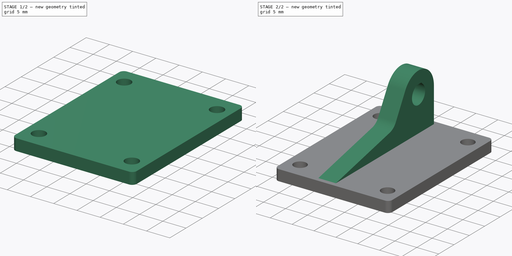
[diagram: build sequence overview — one tinted view per stage of 2, left to right]
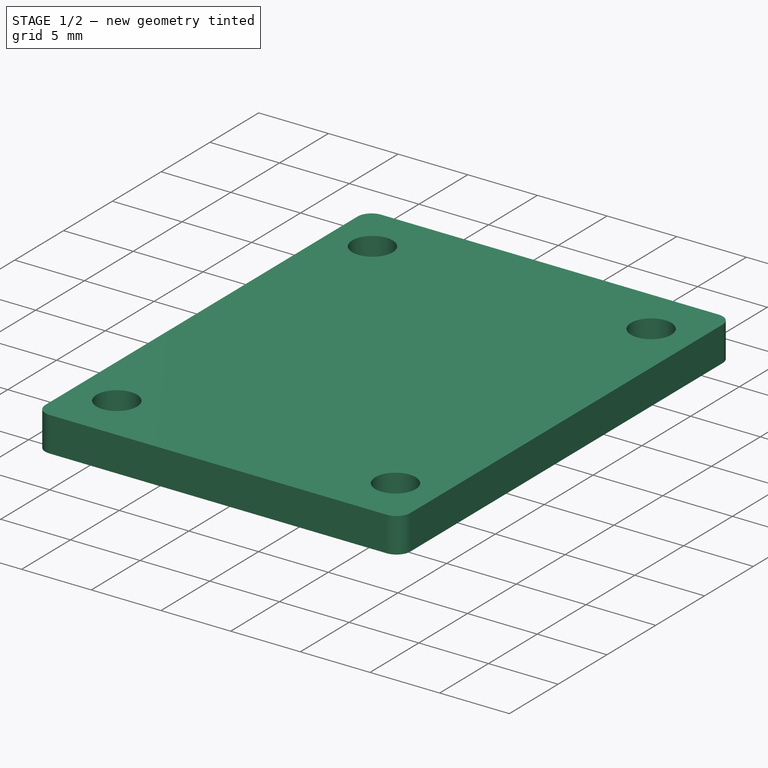
[diagram: stage 1 of 2 — iso view after this stage's code; geometry added in this stage tinted green]
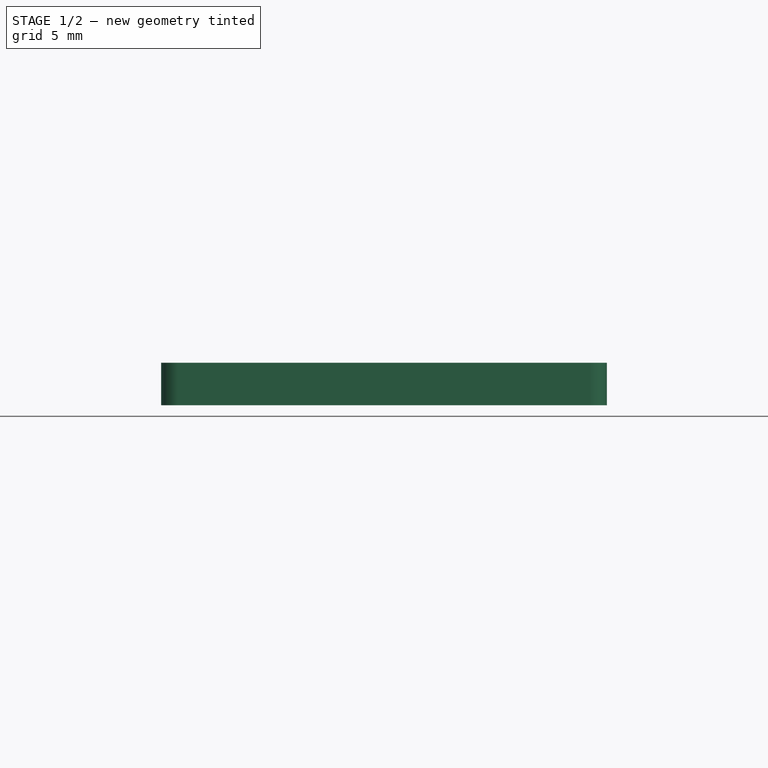
[diagram: stage 1 of 2 — front view after this stage's code; geometry added in this stage tinted green]
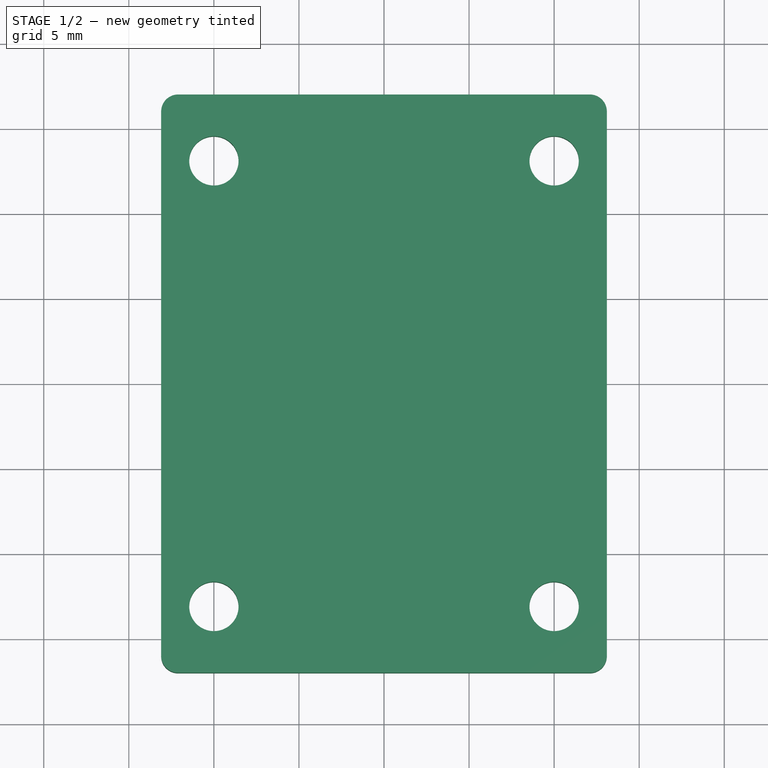
[diagram: stage 1 of 2 — top view after this stage's code; geometry added in this stage tinted green]
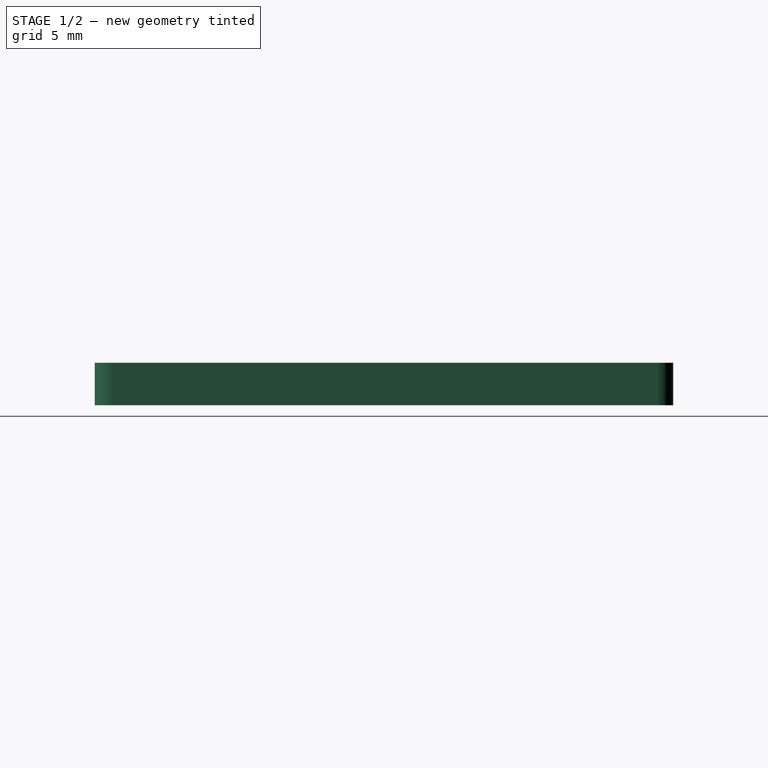
[diagram: stage 1 of 2 — right view after this stage's code; geometry added in this stage tinted green]
FCSTD DOCUMENT  (FreeCAD 0.20R29177 +426 (Git))
Label: SensorMountBackPlate
License: All rights reserved
LicenseURL: http://en.wikipedia.org/wiki/All_rights_reserved
objects: App::DocumentObjectGroup×3, Sketcher::SketchObject×2, PartDesign::Pad×2, PartDesign::CoordinateSystem×2, PartDesign::Body×1, App::FeaturePython×1, App::Part×1
note: 9 computed .brp shape members not serialized (recipe doc carries the construction recipe); baked Part::Feature solids carry a one-line shape summary decoded from their .brp

FEATURE [Sketcher::SketchObject] Sketch
  FullyConstrained = true
  MapMode = 5
  Support = -> [XY_Plane]
  sketch-geometry (19):
    g0: ArcOfCircle CenterX=-12.1 CenterY=16 CenterZ=0 NormalX=0 NormalY=0 NormalZ=1 AngleXU=0 Radius=1 StartAngle=1.5708 EndAngle=3.14159
    g1: LineSegment StartX=-12.1 StartY=17 StartZ=0 EndX=12.1 EndY=17 EndZ=0
    g2: ArcOfCircle CenterX=12.1 CenterY=16 CenterZ=0 NormalX=0 NormalY=0 NormalZ=1 AngleXU=0 Radius=1 StartAngle=4.2e-15 EndAngle=1.5708
    g3: LineSegment StartX=13.1 StartY=16 StartZ=0 EndX=13.1 EndY=-16 EndZ=0
    g4: ArcOfCircle CenterX=12.1 CenterY=-16 CenterZ=0 NormalX=0 NormalY=0 NormalZ=1 AngleXU=0 Radius=1 StartAngle=4.71239 EndAngle=6.28319
    g5: LineSegment StartX=12.1 StartY=-17 StartZ=0 EndX=-12.1 EndY=-17 EndZ=0
    g6: ArcOfCircle CenterX=-12.1 CenterY=-16 CenterZ=0 NormalX=0 NormalY=0 NormalZ=1 AngleXU=0 Radius=1 StartAngle=3.14159 EndAngle=4.71239
    g7: LineSegment StartX=-13.1 StartY=-16 StartZ=0 EndX=-13.1 EndY=16 EndZ=0
    g8: GeomPoint X=-13.1 Y=17 Z=0
    g9: GeomPoint X=13.1 Y=-17 Z=0
    g10: LineSegment StartX=-10 StartY=-13.1 StartZ=0 EndX=-10 EndY=13.1 EndZ=0
    g11: LineSegment StartX=-10 StartY=13.1 StartZ=0 EndX=10 EndY=13.1 EndZ=0
    g12: LineSegment StartX=10 StartY=13.1 StartZ=0 EndX=10 EndY=-13.1 EndZ=0
    g13: LineSegment StartX=10 StartY=-13.1 StartZ=0 EndX=-10 EndY=-13.1 EndZ=0
    g14: GeomPoint X=0 Y=0 Z=0
    g15: Circle CenterX=10 CenterY=13.1 CenterZ=0 NormalX=0 NormalY=0 NormalZ=1 AngleXU=0 Radius=1.45
    g16: Circle CenterX=-10 CenterY=13.1 CenterZ=0 NormalX=0 NormalY=0 NormalZ=1 AngleXU=0 Radius=1.45
    g17: Circle CenterX=-10 CenterY=-13.1 CenterZ=0 NormalX=0 NormalY=0 NormalZ=1 AngleXU=0 Radius=1.45
    g18: Circle CenterX=10 CenterY=-13.1 CenterZ=0 NormalX=0 NormalY=0 NormalZ=1 AngleXU=0 Radius=1.45
  constraints (43):
    c: Tangent(g0,g1) = 1.5708
    c: Tangent(g1,g2) = 1.5708
    c: Tangent(g2,g3) = 1.5708
    c: Tangent(g3,g4) = 1.5708
    c: Tangent(g4,g5) = 1.5708
    c: Tangent(g5,g6) = 1.5708
    c: Tangent(g6,g7) = 1.5708
    c: Tangent(g7,g0) = 1.5708
    c: Horizontal(g1)
    c: Horizontal(g5)
    c: Vertical(g3)
    c: Vertical(g7)
    c: Equal(g0,g2)
    c: Equal(g2,g4)
    c: Equal(g4,g6)
    c: PointOnObject(g8,g1)
    c: PointOnObject(g8,g7)
    c: PointOnObject(g9,g3)
    c: PointOnObject(g9,g5)
    c: Symmetric(g9,g8,g-1)
    c: DistanceY(g4,g1) = 34
    c: DistanceX(g0,g2) = 26.2
    c: Radius(g2) = 1
    c: Coincident(g10,g11)
    c: Coincident(g11,g12)
    c: Coincident(g12,g13)
    c: Coincident(g13,g10)
    c: Horizontal(g11)
    c: Horizontal(g13)
    c: Vertical(g10)
    c: Vertical(g12)
    c: Symmetric(g11,g10,g14)
    c: Coincident(g14,g-1)
    c: Coincident(g15,g11)
    c: Coincident(g16,g10)
    c: Coincident(g17,g10)
    c: Coincident(g18,g12)
    c: Equal(g17,g18)
    c: Equal(g18,g15)
    c: Equal(g15,g16)
    c: Diameter(g15) = 2.9
    c: DistanceX(g11,g11) = 20
    c: DistanceY(g12,g12) = 26.2
FEATURE [PartDesign::Pad] Pad  label="Base"
  Direction = (0,0,1)
  Length = 2.5
  Length2 = 10
  Profile = -> Sketch
  ReferenceAxis = -> Sketch [N_Axis]
  Reversed = true
  Type = 0
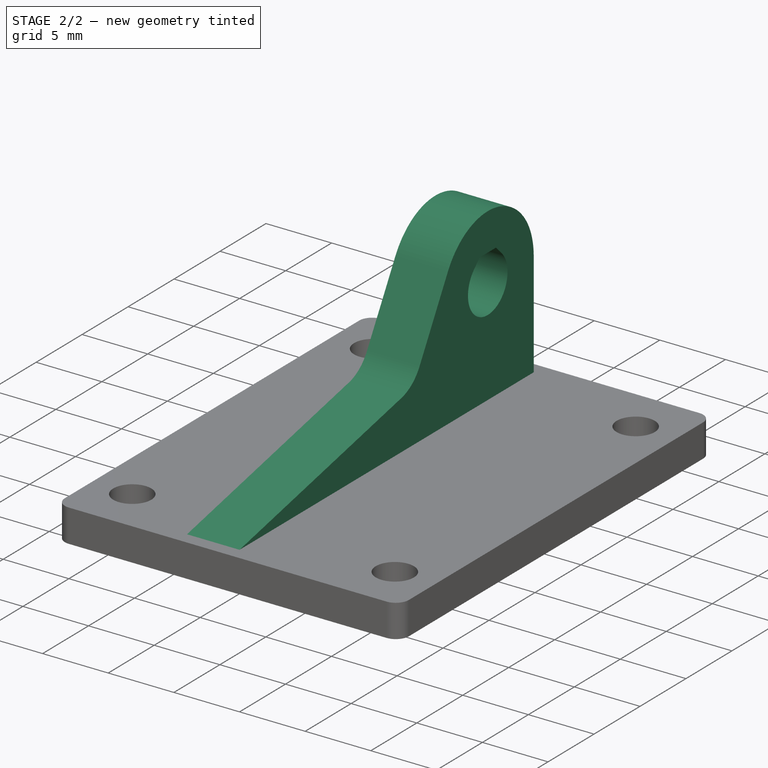
[diagram: stage 2 of 2 — iso view after this stage's code; geometry added in this stage tinted green]
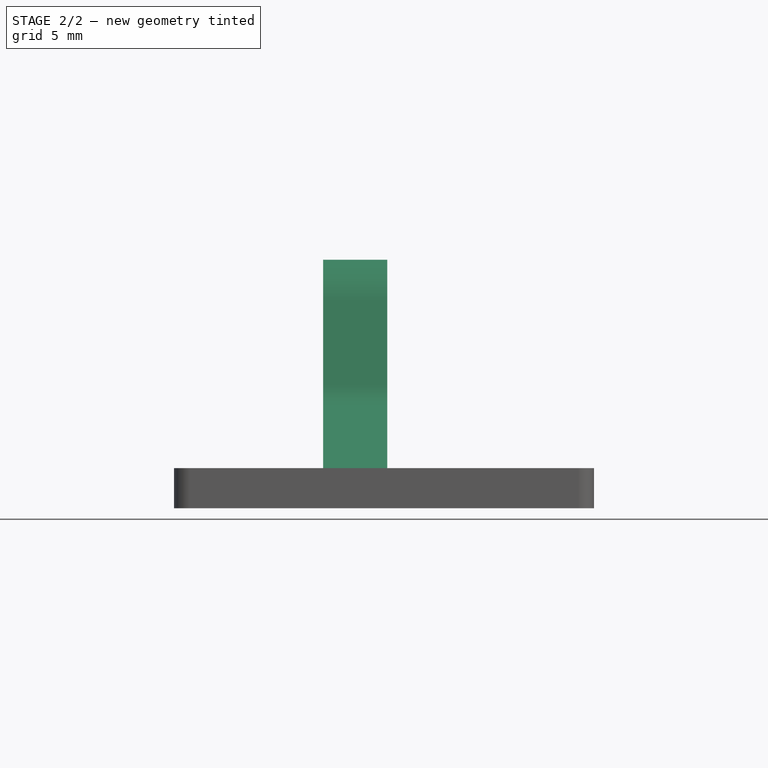
[diagram: stage 2 of 2 — front view after this stage's code; geometry added in this stage tinted green]
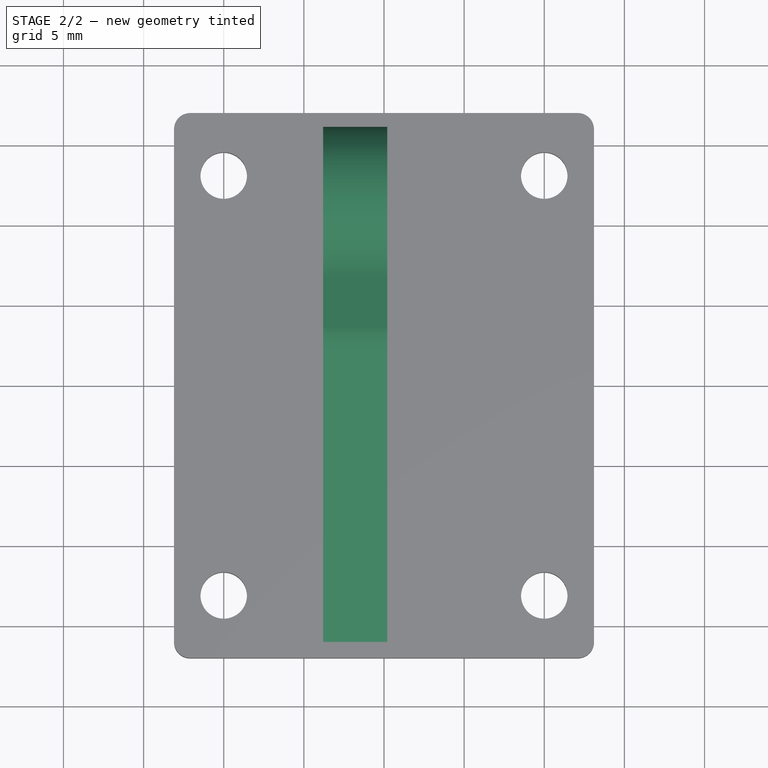
[diagram: stage 2 of 2 — top view after this stage's code; geometry added in this stage tinted green]
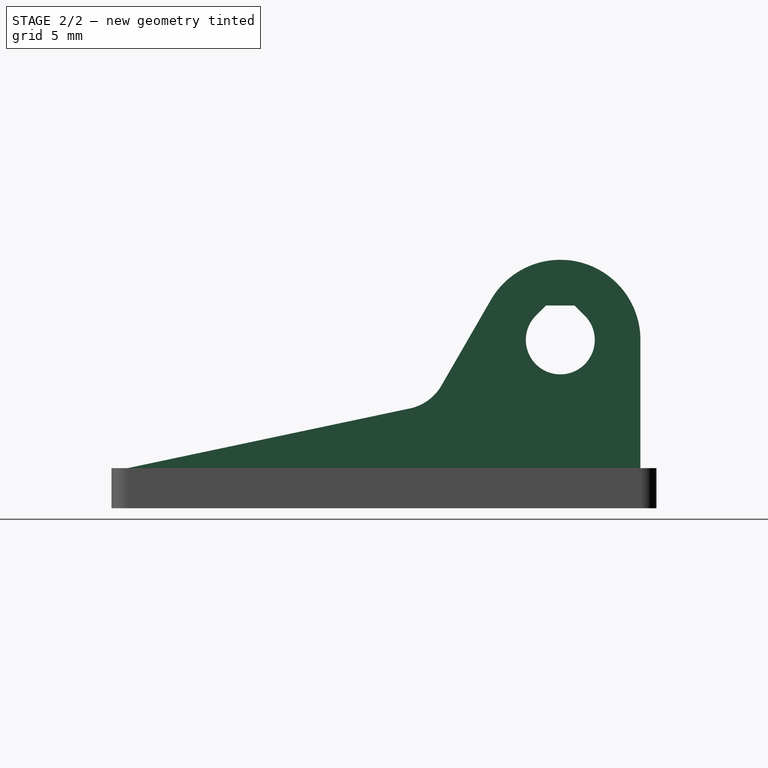
[diagram: stage 2 of 2 — right view after this stage's code; geometry added in this stage tinted green]
FEATURE [Sketcher::SketchObject] Sketch001
  AttachmentOffset = pos=(0,0,-1.8) rot=(0,0,1;0rad)
  FullyConstrained = true
  MapMode = 5
  Placement = pos=(-1.8,4e-16,-4e-16) rot=(0.57735,0.57735,0.57735;2.0944rad)
  Support = -> [YZ_Plane]
  sketch-geometry (13):
    g0: ArcOfCircle CenterX=11 CenterY=8 CenterZ=0 NormalX=0 NormalY=0 NormalZ=1 AngleXU=0 Radius=5 StartAngle=0 EndAngle=2.61799
    g1: LineSegment StartX=16 StartY=8 StartZ=0 EndX=16 EndY=0 EndZ=0
    g2: LineSegment StartX=6.66987 StartY=10.5 StartZ=0 EndX=3.58589 EndY=5.15839 EndZ=0
    g3: LineSegment StartX=1.60844 StartY=3.72329 StartZ=0 EndX=-16 EndY=0 EndZ=0
    g4: LineSegment StartX=-16 StartY=0 StartZ=0 EndX=16 EndY=0 EndZ=0
    g5: ArcOfCircle CenterX=0.987816 CenterY=6.65839 CenterZ=0 NormalX=0 NormalY=0 NormalZ=1 AngleXU=0 Radius=3 StartAngle=4.92077 EndAngle=5.75959
    g6: GeomPoint X=2.9171 Y=4 Z=0
    g7: LineSegment StartX=9.47972 StartY=9.52028 StartZ=0 EndX=10.1094 EndY=10.15 EndZ=0
    g8: LineSegment StartX=10.1094 StartY=10.15 StartZ=0 EndX=11.8906 EndY=10.15 EndZ=0
    g9: LineSegment StartX=11.8906 StartY=10.15 StartZ=0 EndX=12.5203 EndY=9.52028 EndZ=0
    g10: ArcOfCircle CenterX=11 CenterY=8 CenterZ=0 NormalX=0 NormalY=0 NormalZ=1 AngleXU=0 Radius=2.15 StartAngle=0.785398 EndAngle=2.35619
    g11: ArcOfCircle CenterX=11 CenterY=8 CenterZ=0 NormalX=0 NormalY=0 NormalZ=1 AngleXU=0 Radius=2.15 StartAngle=2.35619 EndAngle=7.06858
    g12: LineSegment StartX=9.47972 StartY=9.52028 StartZ=0 EndX=12.5203 EndY=9.52028 EndZ=0
  constraints (34):
    c: PointOnObject(g1,g-1)
    c: PointOnObject(g3,g-1)
    c: Tangent(g2,g0) = -1.5708
    c: Tangent(g1,g0) = 1.5708
    c: Diameter(g0) = 10
    c: Coincident(g10,g0)
    c: DistanceX(g-1,g1) = 16
    c: DistanceX(g3,g-1) = 16
    c: Coincident(g4,g3)
    c: Coincident(g4,g1)
    c: Vertical(g1)
    c: DistanceY(g-1,g0) = 8
    c: DistanceY(g-1,g6) = 4
    c: PointOnObject(g6,g2)
    c: PointOnObject(g6,g3)
    c: Tangent(g2,g5) = 1.5708
    c: Tangent(g3,g5) = 1.5708
    c: Radius(g5) = 3
    c: Angle(g2,g-1) = 2.0944
    c: Coincident(g8,g7)
    c: Horizontal(g8)
    c: Coincident(g9,g8)
    c: Coincident(g10,g11)
    c: Coincident(g10,g11)
    c: Diameter(g10) = 4.3
    c: Tangent(g9,g11) = 1.5708
    c: Tangent(g11,g7) = 1.5708
    c: Coincident(g11,g9)
    c: Coincident(g10,g9)
    c: Coincident(g12,g7)
    c: Coincident(g12,g9)
    c: Horizontal(g12)
    c: Angle(g9,g12) = 0.785398
    c: Tangent(g8,g10)
FEATURE [PartDesign::Pad] Pad001  label="MountPivot"
  BaseFeature = -> Pad
  Direction = (1,-2e-16,3e-16)
  Length = 4
  Length2 = 10
  Midplane = true
  Profile = -> Sketch001
  ReferenceAxis = -> Sketch001 [N_Axis]
  Type = 0
FEATURE [PartDesign::Body] Body
  Group = -> [Sketch,Pad,Sketch001,Pad001]
  Origin = -> Origin
  Tip = -> Pad001
FEATURE [App::DocumentObjectGroup] Parts
FEATURE [PartDesign::CoordinateSystem] LCS_Origin
  AttacherType = Attacher::AttachEngine3D
  MapMode = 2
  Support = -> [X_Axis001]
FEATURE [App::DocumentObjectGroup] Constraints
FEATURE [App::FeaturePython] Variables  # WARN: FeaturePython — macro-defined, semantics opaque (R4)
  Type = App::PropertyContainer
FEATURE [App::DocumentObjectGroup] Configurations
FEATURE [PartDesign::CoordinateSystem] LCS_MountPivot
  AttacherType = Attacher::AttachEngine3D
  MapMode = 11
  Placement = pos=(-3.8,11,8) rot=(-0.357407,0.862856,-0.357407;1.71777rad)
  Support = -> [Pad001]
FEATURE [App::Part] Assembly
  AssemblyType = Part::Link
  Group = -> [LCS_Origin,Constraints,Variables,Configurations,Body,LCS_MountPivot]
  Origin = -> Origin001
  Type = Assembly
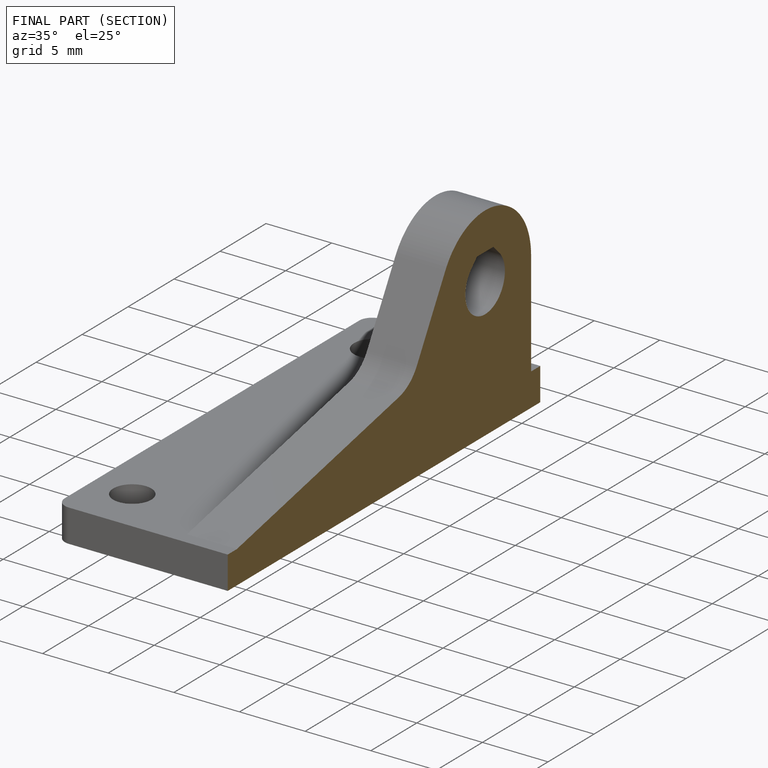
[diagram: finished part — half-section view (interior)]
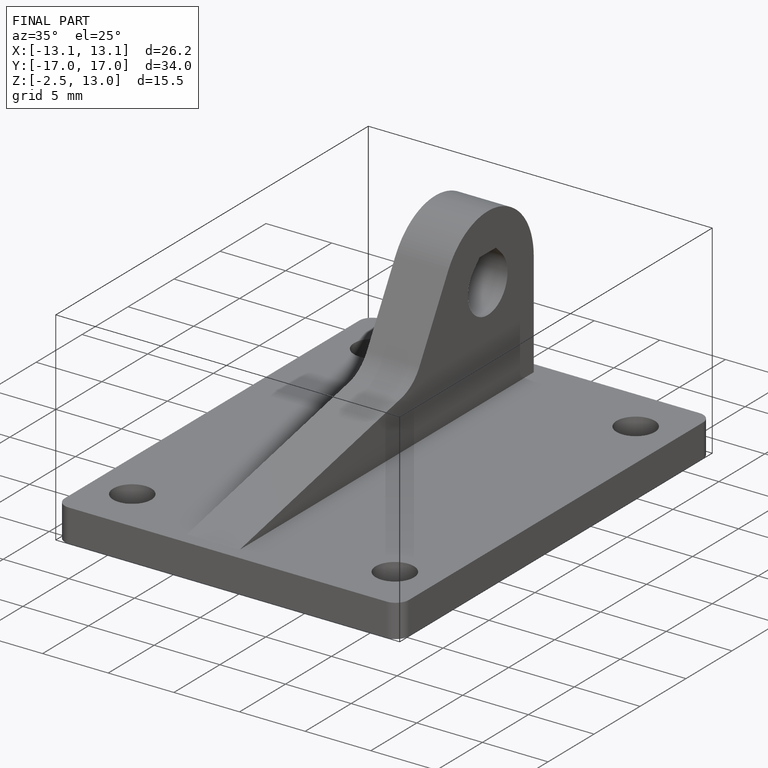
[diagram: finished part — iso view with bounding-box wireframe]
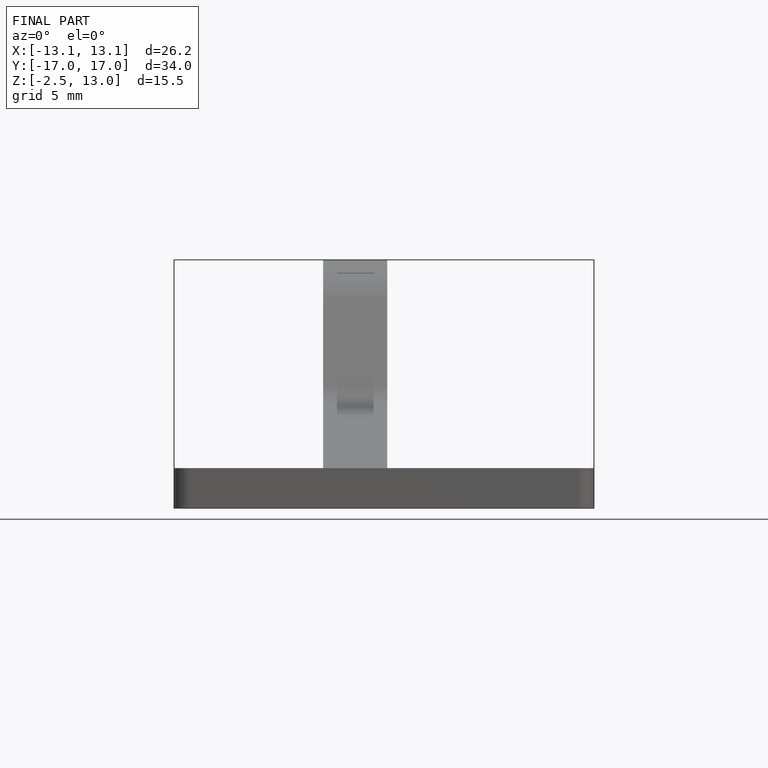
[diagram: finished part — front view with bounding-box wireframe]
